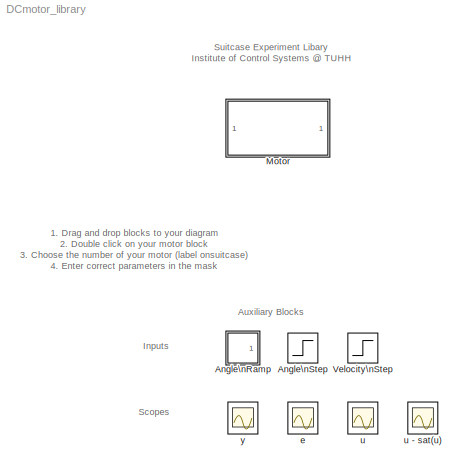
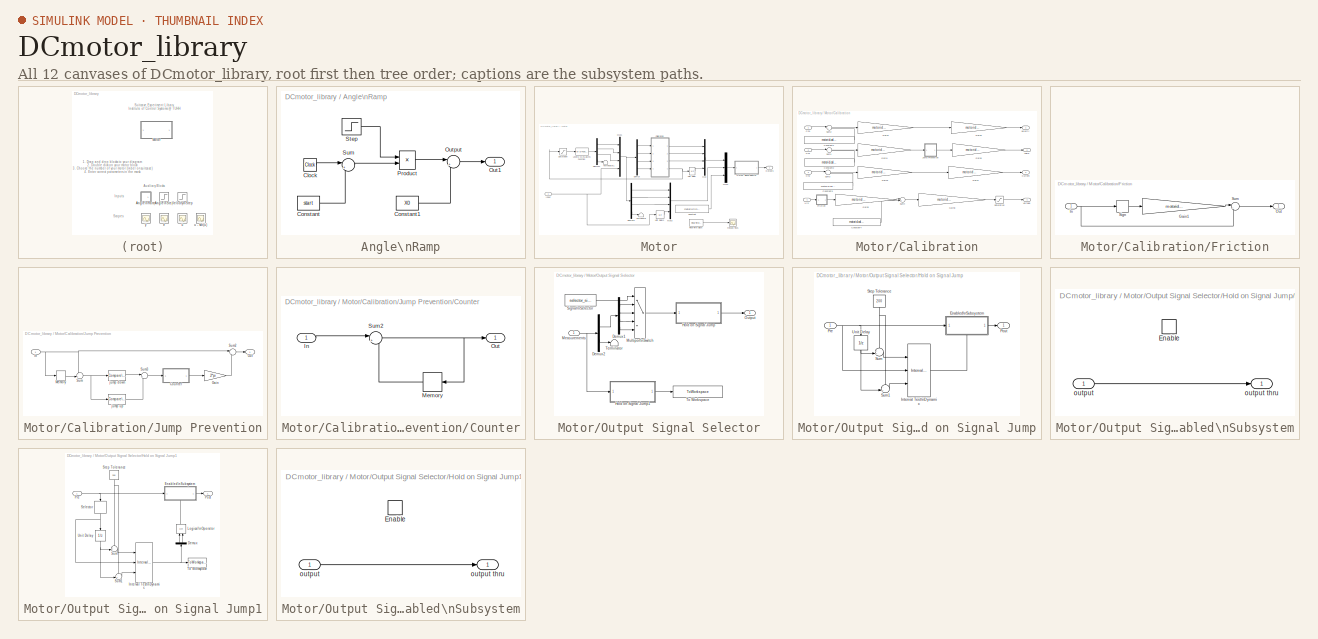
[diagram: thumbnail index - all 12 canvases of the model, root first then tree order]
MODEL DCmotor_library
KIND library
BLOCK [SubSystem] Angle\nRamp
  FunctionWithSeparateData = off
  MaskCallbackString = ||||
  MaskDescription = Simulink:masks:Ramp_MD
  MaskDisplay = plot([0:10],[1,1,1,1:8])
  MaskEnableString = on,on,on,on,on
  MaskHideContents = off
  MaskIconFrame = on
  MaskIconOpaque = on
  MaskIconRotate = none
  MaskIconUnits = autoscale
  MaskInitialization = blkName = gcb;\nset_param([blkName '/Constant'], 'VectorParams1D',VectorParams1D);\nset_param([blkName '/Constant1'], 'VectorParams1D',VectorParams1D);\nset_param([blkName '/Step'], 'VectorParams1D',VectorParams1D);
  MaskPortRotate = default
  MaskPromptString = Simulink:masks:Slope_MP|Simulink:masks:StartTime_MP|Simulink:masks:InitialOutput_MP|Simulink:masks:InterpretVectorParametersAs1D_MP|Sample time
  MaskStyleString = edit,edit,edit,checkbox,edit
  MaskToolTipString = on,on,on,on,on
  MaskTunableValueString = on,on,on,off,on
  MaskType = Ramp
  MaskValueString = 1|1|0|on|0.01
  MaskVariables = slope=@1;start=@2;X0=@3;VectorParams1D=&4;sampletime=@5;
  MaskVisibilityString = on,on,on,on,on
  MinAlgLoopOccurrences = off
  Opaque = off
  Ports = [0, 1]
  PropExecContextOutsideSubsystem = off
  RTWSystemCode = Auto
  RequestExecContextInheritance = off
  SID = 1
BLOCK [Clock] Angle\nRamp/Clock
  DisableCoverage = on
  SID = 2
BLOCK [Constant] Angle\nRamp/Constant
  DisableCoverage = on
  OutDataTypeMode = Inherit via back propagation
  OutDataTypeStr = Inherit: Inherit via back propagation
  SID = 3
  Value = start
BLOCK [Constant] Angle\nRamp/Constant1
  DisableCoverage = on
  OutDataTypeMode = Inherit via back propagation
  OutDataTypeStr = Inherit: Inherit via back propagation
  SID = 4
  Value = X0
BLOCK [Outport] Angle\nRamp/Out1
  IconDisplay = Port number
  SID = 9
BLOCK [Sum] Angle\nRamp/Output
  IconShape = round
  Inputs = |++
  Ports = [2, 1]
  SID = 5
BLOCK [Product] Angle\nRamp/Product
  DisableCoverage = on
  Ports = [2, 1]
  RndMeth = Floor
  SID = 6
BLOCK [Step] Angle\nRamp/Step
  After = slope
  DisableCoverage = on
  SID = 7
  SampleTime = sampletime
  Time = start
BLOCK [Sum] Angle\nRamp/Sum
  DisableCoverage = on
  IconShape = round
  Inputs = |+-
  Ports = [2, 1]
  SID = 8
BLOCK [Step] Angle\nStep
  After = 10
  SID = 10
  SampleTime = 0.01
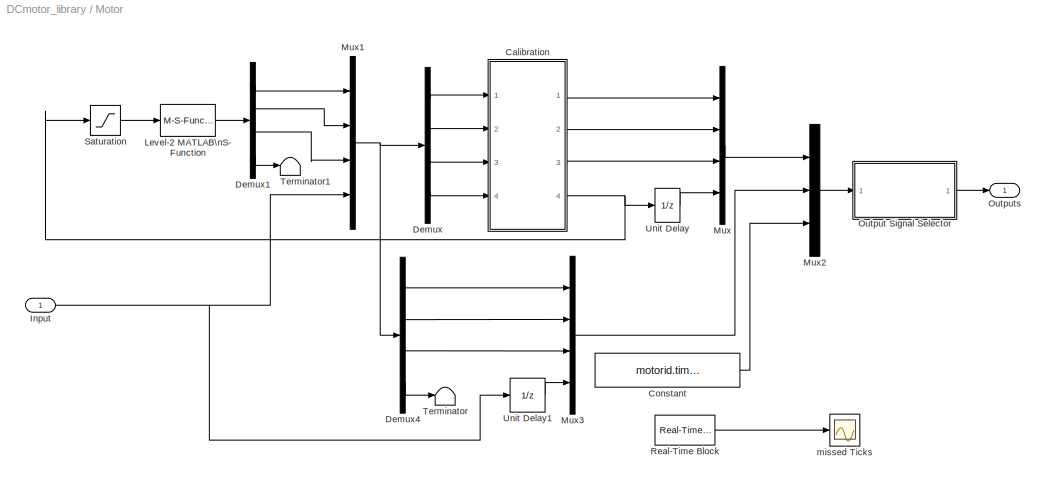
BLOCK [SubSystem] Motor
  FunctionWithSeparateData = off
  InitFcn = id_tag = daq.getDevices().ID;\nni_obj = daq.createSession('ni');\nni_obj.addAnalogInputChannel(id_tag,'ai0','Voltage');\nni_obj.addAnalogInputChannel(id_tag,'ai1','Voltage');\nni_obj.addAnalogInputChannel(id_tag,'ai2','Voltage');\nni_obj.addAnalogInputChannel(id_tag,'ai3','Voltage');\nni_obj.addAnalogOutputChannel(id_tag, 'ao0', 'Voltage');
  MaskCallbackString = ||
  MaskDescription = Select signal and corresponding units\n\n    Signal   |      SI     |      Motor \n-------------------------------------------- \n   Velocity      [rad/s]         [rot/s]\n   Angle          [rad]            [°]\n   Current         [A]             [mA]\n   Voltage         [V]             [V]\n
  MaskDisplay = port_label('input', 1, 'Voltage')\nport_label('output', 1, name_signal)
  MaskEnableString = on,on,on
  MaskHideContents = off
  MaskIconFrame = on
  MaskIconOpaque = on
  MaskIconRotate = none
  MaskIconUnits = autoscale
  MaskInitialization = name_unit = 'SI'; %Motor, Raw\n\nload motor.mat;\n%global GLOB_motor\n\nif ~exist('GLOB_motor')\n    error('Please first load motor data from file motor.mat')\nend\n\nmotor = GLOB_motor;\n\nif strcmp(name_signal, 'Velocity')\n    selector_signals = 1;\nelseif strcmp(name_signal, 'Angle')\n    selector_signals = 2;\nelseif strcmp(name_signal, 'Current')\n    selector_signals = 3;\nelseif strcmp(nam...<+5088ch>
  MaskPortRotate = default
  MaskPromptString = Motor Number|Output Variable|Sampling Time [ms]
  MaskSelfModifiable = on
  MaskStyleString = popup(1|2|3|4|5|6|7|8|9|10|11|12|13|14|15|16|17|18|19|20|21|22|23|24|25|26|27|28|29|30|31|32|33|34|35|36|37|38|39|40|41|42|43|44|45|46|47|48|49|50|51|52|53|54|55|56|57|58|59|60|61|62|unknown),popup(Velocity|Angle|Current|Voltage),popup(10|20|30|50|75|100|150)
  MaskToolTipString = on,on,on
  MaskTunableValueString = off,off,off
  MaskValueString = 1|Velocity|10
  MaskVariables = motoridinput=@1;name_signal=&2;ts=@3;
  MaskVisibilityString = on,on,on
  MinAlgLoopOccurrences = off
  Opaque = off
  Ports = [1, 1]
  PropExecContextOutsideSubsystem = off
  RTWSystemCode = Auto
  RequestExecContextInheritance = off
  SID = 11
  StopFcn = ni_obj.outputSingleScan(2.5);          \nclearvars ans id_tag jumps mvals ni_obj
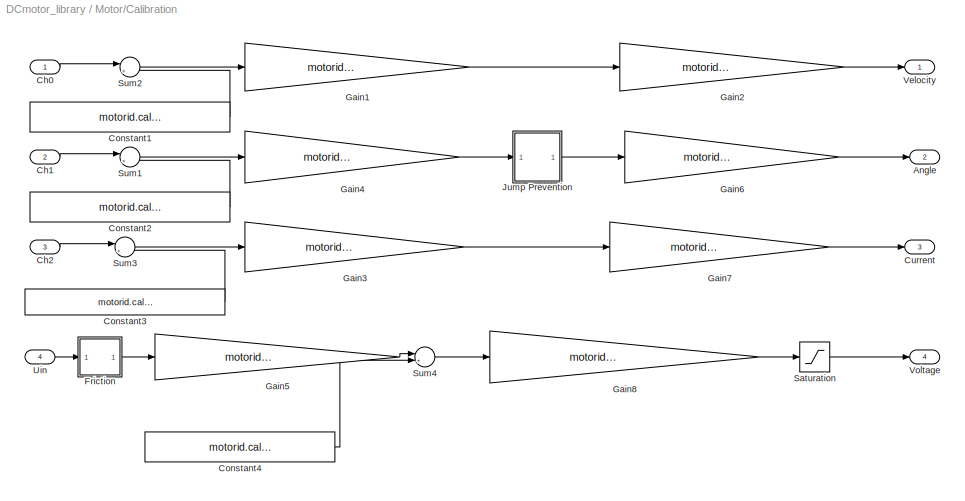
BLOCK [SubSystem] Motor/Calibration
  FunctionWithSeparateData = off
  MaskHideContents = off
  MinAlgLoopOccurrences = off
  Opaque = off
  Ports = [4, 4]
  PropExecContextOutsideSubsystem = off
  RTWSystemCode = Auto
  RequestExecContextInheritance = off
  SID = 2
BLOCK [Outport] Motor/Calibration/Angle
  IconDisplay = Port number
  Port = 2
  SID = 46
BLOCK [Inport] Motor/Calibration/Ch0
  IconDisplay = Port number
  OutDataTypeMode = Inherit via back propagation
  SID = 3
BLOCK [Inport] Motor/Calibration/Ch1
  IconDisplay = Port number
  OutDataTypeMode = Inherit via back propagation
  Port = 2
  SID = 4
BLOCK [Inport] Motor/Calibration/Ch2
  IconDisplay = Port number
  Port = 3
  SID = 5
BLOCK [Constant] Motor/Calibration/Constant1
  SID = 7
  Value = motorid.calibration.velocity.offset
BLOCK [Constant] Motor/Calibration/Constant2
  SID = 8
  Value = motorid.calibration.angle.offset
BLOCK [Constant] Motor/Calibration/Constant3
  SID = 9
  Value = motorid.calibration.current.offset
BLOCK [Constant] Motor/Calibration/Constant4
  SID = 10
  Value = motorid.calibration.voltage.offset
BLOCK [Outport] Motor/Calibration/Current
  IconDisplay = Port number
  Port = 3
  SID = 47
BLOCK [SubSystem] Motor/Calibration/Friction
  FunctionWithSeparateData = off
  MaskHideContents = off
  MinAlgLoopOccurrences = off
  Opaque = off
  Ports = [1, 1]
  PropExecContextOutsideSubsystem = off
  RTWSystemCode = Auto
  RequestExecContextInheritance = off
  SID = 11
BLOCK [Gain] Motor/Calibration/Friction/Gain1
  DisableCoverage = on
  Gain = motorid.calibration.friction
  OutDataTypeStr = Inherit: Inherit via back propagation
  ParamDataTypeStr = Inherit: Inherit via internal rule
  SID = 13
BLOCK [Inport] Motor/Calibration/Friction/In
  IconDisplay = Port number
  SID = 12
BLOCK [Outport] Motor/Calibration/Friction/Out
  IconDisplay = Port number
  SID = 16
BLOCK [Signum] Motor/Calibration/Friction/Sign
  SID = 14
BLOCK [Sum] Motor/Calibration/Friction/Sum
  IconShape = round
  Inputs = |++
  Ports = [2, 1]
  SID = 15
BLOCK [Gain] Motor/Calibration/Gain1
  Gain = motorid.calibration.velocity.slope
  OutDataTypeStr = Inherit: Inherit via internal rule
  ParamDataTypeStr = Inherit: Inherit via internal rule
  SID = 17
  SaturateOnIntegerOverflow = off
BLOCK [Gain] Motor/Calibration/Gain2
  Gain = motorid.calibration.velocity.unit
  OutDataTypeStr = Inherit: Inherit via internal rule
  ParamDataTypeStr = Inherit: Inherit via internal rule
  SID = 18
  SaturateOnIntegerOverflow = off
BLOCK [Gain] Motor/Calibration/Gain3
  Gain = motorid.calibration.current.slope
  OutDataTypeStr = Inherit: Inherit via internal rule
  ParamDataTypeStr = Inherit: Inherit via internal rule
  SID = 19
  SaturateOnIntegerOverflow = off
BLOCK [Gain] Motor/Calibration/Gain4
  Gain = motorid.calibration.angle.slope
  OutDataTypeStr = Inherit: Inherit via internal rule
  ParamDataTypeStr = Inherit: Inherit via internal rule
  SID = 20
  SaturateOnIntegerOverflow = off
BLOCK [Gain] Motor/Calibration/Gain5
  Gain = motorid.calibration.voltage.slope
  OutDataTypeStr = Inherit: Inherit via internal rule
  ParamDataTypeStr = Inherit: Inherit via internal rule
  SID = 21
  SaturateOnIntegerOverflow = off
BLOCK [Gain] Motor/Calibration/Gain6
  Gain = motorid.calibration.angle.unit
  OutDataTypeStr = Inherit: Inherit via internal rule
  ParamDataTypeStr = Inherit: Inherit via internal rule
  SID = 22
  SaturateOnIntegerOverflow = off
BLOCK [Gain] Motor/Calibration/Gain7
  Gain = motorid.calibration.current.unit
  OutDataTypeStr = Inherit: Inherit via internal rule
  ParamDataTypeStr = Inherit: Inherit via internal rule
  SID = 23
  SaturateOnIntegerOverflow = off
BLOCK [Gain] Motor/Calibration/Gain8
  Gain = motorid.calibration.voltage.unit
  OutDataTypeStr = Inherit: Inherit via internal rule
  ParamDataTypeStr = Inherit: Inherit via internal rule
  SID = 24
  SaturateOnIntegerOverflow = off
BLOCK [SubSystem] Motor/Calibration/Jump Prevention
  FunctionWithSeparateData = off
  MaskHideContents = off
  MinAlgLoopOccurrences = off
  Opaque = off
  Ports = [1, 1]
  PropExecContextOutsideSubsystem = off
  RTWSystemCode = Auto
  RequestExecContextInheritance = off
  SID = 25
BLOCK [SubSystem] Motor/Calibration/Jump Prevention/Counter
  FunctionWithSeparateData = off
  MaskHideContents = off
  MinAlgLoopOccurrences = off
  Opaque = off
  Ports = [1, 1]
  PropExecContextOutsideSubsystem = off
  RTWSystemCode = Auto
  RequestExecContextInheritance = off
  SID = 27
BLOCK [Inport] Motor/Calibration/Jump Prevention/Counter/In
  IconDisplay = Port number
  SID = 28
BLOCK [Memory] Motor/Calibration/Jump Prevention/Counter/Memory
  SID = 29
BLOCK [Outport] Motor/Calibration/Jump Prevention/Counter/Out
  IconDisplay = Port number
  SID = 31
BLOCK [Sum] Motor/Calibration/Jump Prevention/Counter/Sum2
  IconShape = round
  InputSameDT = off
  Inputs = |++
  OutDataTypeStr = Inherit: Inherit via internal rule
  Ports = [2, 1]
  SID = 30
  SaturateOnIntegerOverflow = off
BLOCK [Gain] Motor/Calibration/Jump Prevention/Gain
  Gain = 2*pi
  OutDataTypeStr = Inherit: Inherit via internal rule
  ParamDataTypeStr = Inherit: Inherit via internal rule
  SID = 32
  SaturateOnIntegerOverflow = off
BLOCK [Inport] Motor/Calibration/Jump Prevention/In
  IconDisplay = Port number
  SID = 26
BLOCK [Memory] Motor/Calibration/Jump Prevention/Memory
  SID = 33
BLOCK [Outport] Motor/Calibration/Jump Prevention/Out
  IconDisplay = Port number
  SID = 39
BLOCK [Sum] Motor/Calibration/Jump Prevention/Sum
  IconShape = round
  InputSameDT = off
  Inputs = -+|
  OutDataTypeStr = Inherit: Inherit via internal rule
  Ports = [2, 1]
  SID = 34
  SaturateOnIntegerOverflow = off
BLOCK [Sum] Motor/Calibration/Jump Prevention/Sum2
  IconShape = round
  InputSameDT = off
  Inputs = |++
  OutDataTypeStr = Inherit: Inherit via internal rule
  Ports = [2, 1]
  SID = 35
  SaturateOnIntegerOverflow = off
BLOCK [Sum] Motor/Calibration/Jump Prevention/Sum3
  IconShape = round
  InputSameDT = off
  Inputs = |+-
  OutDataTypeStr = double
  Ports = [2, 1]
  SID = 36
  SaturateOnIntegerOverflow = off
BLOCK [Reference] Motor/Calibration/Jump Prevention/jump down  REF=simulink/Logic and Bit\nOperations/Compare\nTo Constant
  LogicOutDataTypeMode = uint8
  Ports = [1, 1]
  SID = 37
  SourceBlock = simulink/Logic and Bit\nOperations/Compare\nTo Constant
  SourceType = Compare To Constant
  ZeroCross = off
  const = 2.5
  relop = >=
BLOCK [Reference] Motor/Calibration/Jump Prevention/jump up  REF=simulink/Logic and Bit\nOperations/Compare\nTo Constant
  LogicOutDataTypeMode = uint8
  Ports = [1, 1]
  SID = 38
  SourceBlock = simulink/Logic and Bit\nOperations/Compare\nTo Constant
  SourceType = Compare To Constant
  ZeroCross = off
  const = -2.5
  relop = <=
BLOCK [Saturate] Motor/Calibration/Saturation
  LowerLimit = 0
  SID = 40
  UpperLimit = 5
BLOCK [Sum] Motor/Calibration/Sum1
  IconShape = round
  InputSameDT = off
  Inputs = |+-
  OutDataTypeStr = Inherit: Inherit via internal rule
  Ports = [2, 1]
  SID = 41
  SaturateOnIntegerOverflow = off
BLOCK [Sum] Motor/Calibration/Sum2
  IconShape = round
  InputSameDT = off
  Inputs = |+-
  OutDataTypeStr = Inherit: Inherit via internal rule
  Ports = [2, 1]
  SID = 42
  SaturateOnIntegerOverflow = off
BLOCK [Sum] Motor/Calibration/Sum3
  IconShape = round
  InputSameDT = off
  Inputs = |+-
  OutDataTypeStr = Inherit: Inherit via internal rule
  Ports = [2, 1]
  SID = 43
  SaturateOnIntegerOverflow = off
BLOCK [Sum] Motor/Calibration/Sum4
  IconShape = round
  InputSameDT = off
  Inputs = |++
  OutDataTypeStr = Inherit: Inherit via internal rule
  Ports = [2, 1]
  SID = 44
  SaturateOnIntegerOverflow = off
BLOCK [Inport] Motor/Calibration/Uin
  IconDisplay = Port number
  Port = 4
  SID = 6
BLOCK [Outport] Motor/Calibration/Velocity
  IconDisplay = Port number
  SID = 45
BLOCK [Outport] Motor/Calibration/Voltage
  IconDisplay = Port number
  Port = 4
  SID = 48
BLOCK [Constant] Motor/Constant
  SID = 49
  Value = motorid.timing.sampletime
BLOCK [Demux] Motor/Demux
  DisplayOption = bar
  Ports = [1, 4]
  SID = 50
BLOCK [Demux] Motor/Demux1
  DisplayOption = bar
  Ports = [1, 4]
  SID = 51
BLOCK [Demux] Motor/Demux4
  DisplayOption = bar
  Ports = [1, 4]
  SID = 52
BLOCK [Inport] Motor/Input
  IconDisplay = Port number
  SID = 1
BLOCK [M-S-Function] Motor/Level-2 MATLAB\nS-Function
  FunctionName = DCMotor
  Parameters = ni_obj
  Ports = [1, 1]
  SID = 87
BLOCK [Mux] Motor/Mux
  DisplayOption = bar
  Ports = [4, 1]
  SID = 53
BLOCK [Mux] Motor/Mux1
  DisplayOption = bar
  Ports = [4, 1]
  SID = 54
BLOCK [Mux] Motor/Mux2
  DisplayOption = bar
  Inputs = 3
  Ports = [3, 1]
  SID = 55
BLOCK [Mux] Motor/Mux3
  DisplayOption = bar
  Ports = [4, 1]
  SID = 56
BLOCK [SubSystem] Motor/Output Signal Selector
  FunctionWithSeparateData = off
  MaskDescription = Select the desired output.
  MaskDisplay = port_label('output',1, 'Output');\nport_label('input' ,1 , 'Motor');\n%port_label('input',1,['Task ' name_labproblem name_task name_subtask]);
  MaskHideContents = off
  MaskIconFrame = on
  MaskIconOpaque = on
  MaskIconRotate = none
  MaskIconUnits = autoscale
  MaskPortRotate = default
  MaskType = Output Signal Selector
  MinAlgLoopOccurrences = off
  Opaque = off
  Ports = [1, 1]
  PropExecContextOutsideSubsystem = off
  RTWSystemCode = Auto
  RequestExecContextInheritance = off
  SID = 57
  StopFcn = global GLOB_filename;        \n%data.filename=GLOB_filename;\n%data=save_data(data);
BLOCK [Demux] Motor/Output Signal Selector/Demux1
  DisplayOption = bar
  Ports = [1, 4]
  SID = 59
BLOCK [Demux] Motor/Output Signal Selector/Demux2
  DisplayOption = bar
  Outputs = [4 -1]
  Ports = [1, 2]
  SID = 60
BLOCK [SubSystem] Motor/Output Signal Selector/Hold on Signal Jump
  FunctionWithSeparateData = off
  MaskHideContents = off
  MinAlgLoopOccurrences = off
  Opaque = off
  Ports = [1, 1]
  PropExecContextOutsideSubsystem = off
  RTWSystemCode = Auto
  RequestExecContextInheritance = off
  SID = 61
BLOCK [SubSystem] Motor/Output Signal Selector/Hold on Signal Jump/Enabled\nSubsystem
  FunctionWithSeparateData = off
  MaskHideContents = off
  MinAlgLoopOccurrences = off
  Opaque = off
  Ports = [1, 1, 1]
  PropExecContextOutsideSubsystem = off
  RTWSystemCode = Auto
  RequestExecContextInheritance = off
  SID = 63
  TreatAsAtomicUnit = on
BLOCK [EnablePort] Motor/Output Signal Selector/Hold on Signal Jump/Enabled\nSubsystem/Enable
  Ports = []
  PropagateVarSize = During execution
  SID = 65
  StatesWhenEnabling = reset
BLOCK [Inport] Motor/Output Signal Selector/Hold on Signal Jump/Enabled\nSubsystem/output
  IconDisplay = Port number
  SID = 64
BLOCK [Outport] Motor/Output Signal Selector/Hold on Signal Jump/Enabled\nSubsystem/output thru
  IconDisplay = Port number
  SID = 66
BLOCK [Reference] Motor/Output Signal Selector/Hold on Signal Jump/Interval Test\nDynamic  REF=simulink/Logic and Bit\nOperations/Interval Test\nDynamic
  IntervalClosedLeft = on
  IntervalClosedRight = on
  LogicOutDataTypeMode = boolean
  Ports = [3, 1]
  SID = 67
  SourceBlock = simulink/Logic and Bit\nOperations/Interval Test\nDynamic
  SourceType = Interval Test Dynamic
BLOCK [Outport] Motor/Output Signal Selector/Hold on Signal Jump/Post
  IconDisplay = Port number
  SID = 72
BLOCK [Inport] Motor/Output Signal Selector/Hold on Signal Jump/Pre
  IconDisplay = Port number
  SID = 62
BLOCK [Constant] Motor/Output Signal Selector/Hold on Signal Jump/Step Tolerance
  SID = 68
  Value = 200
BLOCK [Sum] Motor/Output Signal Selector/Hold on Signal Jump/Sum
  IconShape = round
  InputSameDT = off
  Inputs = ++|
  OutDataTypeStr = Inherit: Inherit via internal rule
  Ports = [2, 1]
  SID = 69
  SaturateOnIntegerOverflow = off
BLOCK [Sum] Motor/Output Signal Selector/Hold on Signal Jump/Sum1
  IconShape = round
  InputSameDT = off
  Inputs = -+|
  OutDataTypeStr = Inherit: Inherit via internal rule
  Ports = [2, 1]
  SID = 70
  SaturateOnIntegerOverflow = off
BLOCK [UnitDelay] Motor/Output Signal Selector/Hold on Signal Jump/Unit Delay
  SID = 71
  SampleTime = -1
BLOCK [SubSystem] Motor/Output Signal Selector/Hold on Signal Jump1
  AncestorBlock = DCmotor_library/Motor/Output Signal Selector/Hold on Signal Jump
  FunctionWithSeparateData = off
  MaskHideContents = off
  MinAlgLoopOccurrences = off
  Opaque = off
  Ports = [1, 1]
  PropExecContextOutsideSubsystem = off
  RTWSystemCode = Auto
  RequestExecContextInheritance = off
  SID = 73
BLOCK [Demux] Motor/Output Signal Selector/Hold on Signal Jump1/Demux
  DisplayOption = bar
  Outputs = 2
  Ports = [1, 2]
  SID = 2
BLOCK [SubSystem] Motor/Output Signal Selector/Hold on Signal Jump1/Enabled\nSubsystem
  FunctionWithSeparateData = off
  MaskHideContents = off
  MinAlgLoopOccurrences = off
  Opaque = off
  OutDataTypeMode = Inherit via back propagation
  Ports = [1, 1, 1]
  PropExecContextOutsideSubsystem = off
  RTWSystemCode = Auto
  RequestExecContextInheritance = off
  SID = 3
  TreatAsAtomicUnit = on
BLOCK [EnablePort] Motor/Output Signal Selector/Hold on Signal Jump1/Enabled\nSubsystem/Enable
  Ports = []
  PropagateVarSize = During execution
  SID = 5
  StatesWhenEnabling = reset
BLOCK [Inport] Motor/Output Signal Selector/Hold on Signal Jump1/Enabled\nSubsystem/output
  IconDisplay = Port number
  OutDataTypeMode = Inherit via back propagation
  SID = 4
BLOCK [Outport] Motor/Output Signal Selector/Hold on Signal Jump1/Enabled\nSubsystem/output thru
  IconDisplay = Port number
  SID = 6
BLOCK [Reference] Motor/Output Signal Selector/Hold on Signal Jump1/Interval Test\nDynamic  REF=simulink/Logic and Bit\nOperations/Interval Test\nDynamic
  IntervalClosedLeft = on
  IntervalClosedRight = on
  LogicOutDataTypeMode = boolean
  Ports = [3, 1]
  SID = 7
  SourceBlock = simulink/Logic and Bit\nOperations/Interval Test\nDynamic
  SourceType = Interval Test Dynamic
BLOCK [Logic] Motor/Output Signal Selector/Hold on Signal Jump1/Logical\nOperator
  AllPortsSameDT = off
  Operator = OR
  OutDataTypeStr = boolean
  Ports = [2, 1]
  SID = 8
BLOCK [Outport] Motor/Output Signal Selector/Hold on Signal Jump1/Post
  IconDisplay = Port number
  SID = 15
BLOCK [Inport] Motor/Output Signal Selector/Hold on Signal Jump1/Pre
  IconDisplay = Port number
  SID = 1
BLOCK [Selector] Motor/Output Signal Selector/Hold on Signal Jump1/Selector
  IndexOptions = Index vector (dialog)
  Indices = [1 2]
  InputPortWidth = 9
  OutputSizes = 1
  Ports = [1, 1]
  SID = 9
BLOCK [Constant] Motor/Output Signal Selector/Hold on Signal Jump1/Step Tolerance
  SID = 10
  Value = 200
BLOCK [Sum] Motor/Output Signal Selector/Hold on Signal Jump1/Sum
  IconShape = round
  InputSameDT = off
  Inputs = ++|
  OutDataTypeStr = Inherit: Inherit via internal rule
  Ports = [2, 1]
  SID = 11
  SaturateOnIntegerOverflow = off
BLOCK [Sum] Motor/Output Signal Selector/Hold on Signal Jump1/Sum1
  IconShape = round
  InputSameDT = off
  Inputs = -+|
  OutDataTypeStr = Inherit: Inherit via internal rule
  Ports = [2, 1]
  SID = 12
  SaturateOnIntegerOverflow = off
BLOCK [ToWorkspace] Motor/Output Signal Selector/Hold on Signal Jump1/To Workspace
  MaxDataPoints = inf
  Ports = [1]
  SID = 13
  SampleTime = -1
  SaveFormat = Structure
  VariableName = jumps
BLOCK [UnitDelay] Motor/Output Signal Selector/Hold on Signal Jump1/Unit Delay
  SID = 14
  SampleTime = -1
BLOCK [Inport] Motor/Output Signal Selector/Measurements
  IconDisplay = Port number
  SID = 58
BLOCK [MultiPortSwitch] Motor/Output Signal Selector/Multiport\nSwitch
  InputSameDT = off
  Inputs = 4
  Ports = [5, 1]
  SID = 74
  SaturateOnIntegerOverflow = off
  zeroidx = off
BLOCK [Outport] Motor/Output Signal Selector/Output
  IconDisplay = Port number
  SID = 78
BLOCK [Constant] Motor/Output Signal Selector/Signal\nSelector
  SID = 75
  Value = selector_signals
BLOCK [Terminator] Motor/Output Signal Selector/Terminator
  SID = 76
BLOCK [ToWorkspace] Motor/Output Signal Selector/To Workspace
  MaxDataPoints = inf
  Ports = [1]
  SID = 77
  SampleTime = -1
  SaveFormat = Structure With Time
  VariableName = data
BLOCK [Outport] Motor/Outputs
  IconDisplay = Port number
  SID = 85
BLOCK [Reference] Motor/Real-Time Block  REF=rtsynclib/Real-Time Block
  Ports = [0, 1]
  SID = 79
  SourceBlock = rtsynclib/Real-Time Block
  sync_time = motorid.timing.sampletime*1e-3
  sync_type = Fixed
BLOCK [Saturate] Motor/Saturation
  LowerLimit = 0
  SID = 88
  UpperLimit = 5
BLOCK [Terminator] Motor/Terminator
  SID = 80
BLOCK [Terminator] Motor/Terminator1
  SID = 86
BLOCK [UnitDelay] Motor/Unit Delay
  SID = 81
  SampleTime = -1
BLOCK [UnitDelay] Motor/Unit Delay1
  SID = 82
  SampleTime = -1
BLOCK [Scope] Motor/missed Ticks
  DataFormat = StructureWithTime
  Floating = off
  NumInputPorts = 1
  Ports = [1]
  SID = 83
  SampleTime = 0
  YMax = 300
  YMin = 0
BLOCK [Step] Velocity\nStep
  After = 47.75
  SID = 12
  SampleTime = 0.01
BLOCK [Scope] e
  DataFormat = StructureWithTime
  Floating = off
  LimitDataPoints = off
  NumInputPorts = 1
  Ports = [1]
  SID = 13
  SampleTime = 0
  SaveName = ScopeData1
  YMax = 11
  YMin = -0.5
BLOCK [Scope] u
  DataFormat = StructureWithTime
  Floating = off
  LimitDataPoints = off
  NumInputPorts = 1
  Ports = [1]
  SID = 14
  SampleTime = 0
  SaveName = ScopeData2
  YMax = 11
  YMin = -0.5
BLOCK [Scope] u - sat(u)
  DataFormat = StructureWithTime
  Floating = off
  LimitDataPoints = off
  NumInputPorts = 1
  Ports = [1]
  SID = 15
  SampleTime = 0
  SaveName = ScopeData3
  YMax = 11
  YMin = -0.5
BLOCK [Scope] y
  DataFormat = StructureWithTime
  Floating = off
  LimitDataPoints = off
  NumInputPorts = 1
  Ports = [1]
  SID = 16
  SampleTime = 0
  SaveName = ScopeData4
  YMax = 11
  YMin = -0.5
ANNOTATION (root): Auxiliary Blocks
ANNOTATION (root): Inputs
ANNOTATION (root): Scopes
ANNOTATION (root): Suitcase Experiment Libary\nInstitute of Control Systems @ TUHH
ANNOTATION (root): \n1. Drag and drop blocks to your diagram\n2. Double click on your motor block\n3. Choose the number of your motor (label onsuitcase)\n4. Enter correct parameters in the mask \n
LINE Angle\nRamp/Clock:1 -> Angle\nRamp/Sum:1
LINE Angle\nRamp/Constant1:1 -> Angle\nRamp/Output:2
LINE Angle\nRamp/Constant:1 -> Angle\nRamp/Sum:2
LINE Angle\nRamp/Output:1 -> Angle\nRamp/Out1:1
LINE Angle\nRamp/Product:1 -> Angle\nRamp/Output:1
LINE Angle\nRamp/Step:1 -> Angle\nRamp/Product:1
LINE Angle\nRamp/Sum:1 -> Angle\nRamp/Product:2
LINE Motor/Calibration/Ch0:1 -> Motor/Calibration/Sum2:1
LINE Motor/Calibration/Ch1:1 -> Motor/Calibration/Sum1:1
LINE Motor/Calibration/Ch2:1 -> Motor/Calibration/Sum3:1
LINE Motor/Calibration/Constant1:1 -> Motor/Calibration/Sum2:2
LINE Motor/Calibration/Constant2:1 -> Motor/Calibration/Sum1:2
LINE Motor/Calibration/Constant3:1 -> Motor/Calibration/Sum3:2
LINE Motor/Calibration/Constant4:1 -> Motor/Calibration/Sum4:2
LINE Motor/Calibration/Friction/Gain1:1 -> Motor/Calibration/Friction/Sum:1
NET Motor/Calibration/Friction/In:1 -> Motor/Calibration/Friction/Sign:1, Motor/Calibration/Friction/Sum:2
LINE Motor/Calibration/Friction/Sign:1 -> Motor/Calibration/Friction/Gain1:1
LINE Motor/Calibration/Friction/Sum:1 -> Motor/Calibration/Friction/Out:1
LINE Motor/Calibration/Friction:1 -> Motor/Calibration/Gain5:1
LINE Motor/Calibration/Gain1:1 -> Motor/Calibration/Gain2:1
LINE Motor/Calibration/Gain2:1 -> Motor/Calibration/Velocity:1
LINE Motor/Calibration/Gain3:1 -> Motor/Calibration/Gain7:1
LINE Motor/Calibration/Gain4:1 -> Motor/Calibration/Jump Prevention:1
LINE Motor/Calibration/Gain5:1 -> Motor/Calibration/Sum4:1
LINE Motor/Calibration/Gain6:1 -> Motor/Calibration/Angle:1
LINE Motor/Calibration/Gain7:1 -> Motor/Calibration/Current:1
LINE Motor/Calibration/Gain8:1 -> Motor/Calibration/Saturation:1
LINE Motor/Calibration/Jump Prevention/Counter/In:1 -> Motor/Calibration/Jump Prevention/Counter/Sum2:1
LINE Motor/Calibration/Jump Prevention/Counter/Memory:1 -> Motor/Calibration/Jump Prevention/Counter/Sum2:2
NET Motor/Calibration/Jump Prevention/Counter/Sum2:1 -> Motor/Calibration/Jump Prevention/Counter/Memory:1, Motor/Calibration/Jump Prevention/Counter/Out:1
LINE Motor/Calibration/Jump Prevention/Counter:1 -> Motor/Calibration/Jump Prevention/Gain:1
LINE Motor/Calibration/Jump Prevention/Gain:1 -> Motor/Calibration/Jump Prevention/Sum2:2
NET Motor/Calibration/Jump Prevention/In:1 -> Motor/Calibration/Jump Prevention/Memory:1, Motor/Calibration/Jump Prevention/Sum2:1, Motor/Calibration/Jump Prevention/Sum:1
LINE Motor/Calibration/Jump Prevention/Memory:1 -> Motor/Calibration/Jump Prevention/Sum:2
LINE Motor/Calibration/Jump Prevention/Sum2:1 -> Motor/Calibration/Jump Prevention/Out:1
LINE Motor/Calibration/Jump Prevention/Sum3:1 -> Motor/Calibration/Jump Prevention/Counter:1
NET Motor/Calibration/Jump Prevention/Sum:1 -> Motor/Calibration/Jump Prevention/jump down:1, Motor/Calibration/Jump Prevention/jump up:1
LINE Motor/Calibration/Jump Prevention/jump down:1 -> Motor/Calibration/Jump Prevention/Sum3:1
LINE Motor/Calibration/Jump Prevention/jump up:1 -> Motor/Calibration/Jump Prevention/Sum3:2
LINE Motor/Calibration/Jump Prevention:1 -> Motor/Calibration/Gain6:1
LINE Motor/Calibration/Saturation:1 -> Motor/Calibration/Voltage:1
LINE Motor/Calibration/Sum1:1 -> Motor/Calibration/Gain4:1
LINE Motor/Calibration/Sum2:1 -> Motor/Calibration/Gain1:1
LINE Motor/Calibration/Sum3:1 -> Motor/Calibration/Gain3:1
LINE Motor/Calibration/Sum4:1 -> Motor/Calibration/Gain8:1
LINE Motor/Calibration/Uin:1 -> Motor/Calibration/Friction:1
LINE Motor/Calibration:1 -> Motor/Mux:1
LINE Motor/Calibration:2 -> Motor/Mux:2
LINE Motor/Calibration:3 -> Motor/Mux:3
NET Motor/Calibration:4 -> Motor/Saturation:1, Motor/Unit Delay:1
LINE Motor/Constant:1 -> Motor/Mux2:3
LINE Motor/Demux1:1 -> Motor/Mux1:1
LINE Motor/Demux1:2 -> Motor/Mux1:2
LINE Motor/Demux1:3 -> Motor/Mux1:3
LINE Motor/Demux1:4 -> Motor/Terminator1:1
LINE Motor/Demux4:1 -> Motor/Mux3:1
LINE Motor/Demux4:2 -> Motor/Mux3:2
LINE Motor/Demux4:3 -> Motor/Mux3:3
LINE Motor/Demux4:4 -> Motor/Terminator:1
LINE Motor/Demux:1 -> Motor/Calibration:1
LINE Motor/Demux:2 -> Motor/Calibration:2
LINE Motor/Demux:3 -> Motor/Calibration:3
LINE Motor/Demux:4 -> Motor/Calibration:4
NET Motor/Input:1 -> Motor/Mux1:4, Motor/Unit Delay1:1
LINE Motor/Level-2 MATLAB\nS-Function:1 -> Motor/Demux1:1
NET Motor/Mux1:1 -> Motor/Demux4:1, Motor/Demux:1
LINE Motor/Mux2:1 -> Motor/Output Signal Selector:1
LINE Motor/Mux3:1 -> Motor/Mux2:2
LINE Motor/Mux:1 -> Motor/Mux2:1
LINE Motor/Output Signal Selector/Demux1:1 -> Motor/Output Signal Selector/Multiport\nSwitch:2
LINE Motor/Output Signal Selector/Demux1:2 -> Motor/Output Signal Selector/Multiport\nSwitch:3
LINE Motor/Output Signal Selector/Demux1:3 -> Motor/Output Signal Selector/Multiport\nSwitch:4
LINE Motor/Output Signal Selector/Demux1:4 -> Motor/Output Signal Selector/Multiport\nSwitch:5
LINE Motor/Output Signal Selector/Demux2:1 -> Motor/Output Signal Selector/Demux1:1
LINE Motor/Output Signal Selector/Demux2:2 -> Motor/Output Signal Selector/Terminator:1
LINE Motor/Output Signal Selector/Hold on Signal Jump/Enabled\nSubsystem/output:1 -> Motor/Output Signal Selector/Hold on Signal Jump/Enabled\nSubsystem/output thru:1
LINE Motor/Output Signal Selector/Hold on Signal Jump/Enabled\nSubsystem:1 -> Motor/Output Signal Selector/Hold on Signal Jump/Post:1
LINE Motor/Output Signal Selector/Hold on Signal Jump/Interval Test\nDynamic:1 -> Motor/Output Signal Selector/Hold on Signal Jump/Enabled\nSubsystem:enable
NET Motor/Output Signal Selector/Hold on Signal Jump/Pre:1 -> Motor/Output Signal Selector/Hold on Signal Jump/Enabled\nSubsystem:1, Motor/Output Signal Selector/Hold on Signal Jump/Interval Test\nDynamic:2, Motor/Output Signal Selector/Hold on Signal Jump/Unit Delay:1
NET Motor/Output Signal Selector/Hold on Signal Jump/Step Tolerance:1 -> Motor/Output Signal Selector/Hold on Signal Jump/Sum1:1, Motor/Output Signal Selector/Hold on Signal Jump/Sum:1
LINE Motor/Output Signal Selector/Hold on Signal Jump/Sum1:1 -> Motor/Output Signal Selector/Hold on Signal Jump/Interval Test\nDynamic:3
LINE Motor/Output Signal Selector/Hold on Signal Jump/Sum:1 -> Motor/Output Signal Selector/Hold on Signal Jump/Interval Test\nDynamic:1
NET Motor/Output Signal Selector/Hold on Signal Jump/Unit Delay:1 -> Motor/Output Signal Selector/Hold on Signal Jump/Sum1:2, Motor/Output Signal Selector/Hold on Signal Jump/Sum:2
LINE Motor/Output Signal Selector/Hold on Signal Jump1/Demux:1 -> Motor/Output Signal Selector/Hold on Signal Jump1/Logical\nOperator:1
LINE Motor/Output Signal Selector/Hold on Signal Jump1/Demux:2 -> Motor/Output Signal Selector/Hold on Signal Jump1/Logical\nOperator:2
LINE Motor/Output Signal Selector/Hold on Signal Jump1/Enabled\nSubsystem/output:1 -> Motor/Output Signal Selector/Hold on Signal Jump1/Enabled\nSubsystem/output thru:1
LINE Motor/Output Signal Selector/Hold on Signal Jump1/Enabled\nSubsystem:1 -> Motor/Output Signal Selector/Hold on Signal Jump1/Post:1
NET Motor/Output Signal Selector/Hold on Signal Jump1/Interval Test\nDynamic:1 -> Motor/Output Signal Selector/Hold on Signal Jump1/Demux:1, Motor/Output Signal Selector/Hold on Signal Jump1/To Workspace:1
LINE Motor/Output Signal Selector/Hold on Signal Jump1/Logical\nOperator:1 -> Motor/Output Signal Selector/Hold on Signal Jump1/Enabled\nSubsystem:enable
NET Motor/Output Signal Selector/Hold on Signal Jump1/Pre:1 -> Motor/Output Signal Selector/Hold on Signal Jump1/Enabled\nSubsystem:1, Motor/Output Signal Selector/Hold on Signal Jump1/Selector:1
NET Motor/Output Signal Selector/Hold on Signal Jump1/Selector:1 -> Motor/Output Signal Selector/Hold on Signal Jump1/Interval Test\nDynamic:2, Motor/Output Signal Selector/Hold on Signal Jump1/Unit Delay:1
NET Motor/Output Signal Selector/Hold on Signal Jump1/Step Tolerance:1 -> Motor/Output Signal Selector/Hold on Signal Jump1/Sum1:1, Motor/Output Signal Selector/Hold on Signal Jump1/Sum:1
LINE Motor/Output Signal Selector/Hold on Signal Jump1/Sum1:1 -> Motor/Output Signal Selector/Hold on Signal Jump1/Interval Test\nDynamic:3
LINE Motor/Output Signal Selector/Hold on Signal Jump1/Sum:1 -> Motor/Output Signal Selector/Hold on Signal Jump1/Interval Test\nDynamic:1
NET Motor/Output Signal Selector/Hold on Signal Jump1/Unit Delay:1 -> Motor/Output Signal Selector/Hold on Signal Jump1/Sum1:2, Motor/Output Signal Selector/Hold on Signal Jump1/Sum:2
LINE Motor/Output Signal Selector/Hold on Signal Jump1:1 -> Motor/Output Signal Selector/To Workspace:1
LINE Motor/Output Signal Selector/Hold on Signal Jump:1 -> Motor/Output Signal Selector/Output:1
NET Motor/Output Signal Selector/Measurements:1 -> Motor/Output Signal Selector/Demux2:1, Motor/Output Signal Selector/Hold on Signal Jump1:1
LINE Motor/Output Signal Selector/Multiport\nSwitch:1 -> Motor/Output Signal Selector/Hold on Signal Jump:1
LINE Motor/Output Signal Selector/Signal\nSelector:1 -> Motor/Output Signal Selector/Multiport\nSwitch:1
LINE Motor/Output Signal Selector:1 -> Motor/Outputs:1
LINE Motor/Real-Time Block:1 -> Motor/missed Ticks:1
LINE Motor/Saturation:1 -> Motor/Level-2 MATLAB\nS-Function:1
LINE Motor/Unit Delay1:1 -> Motor/Mux3:4
LINE Motor/Unit Delay:1 -> Motor/Mux:4
note: NET lines group one-source signal fan-out (src -> all destinations, sorted); 1:1 wires keep LINE
